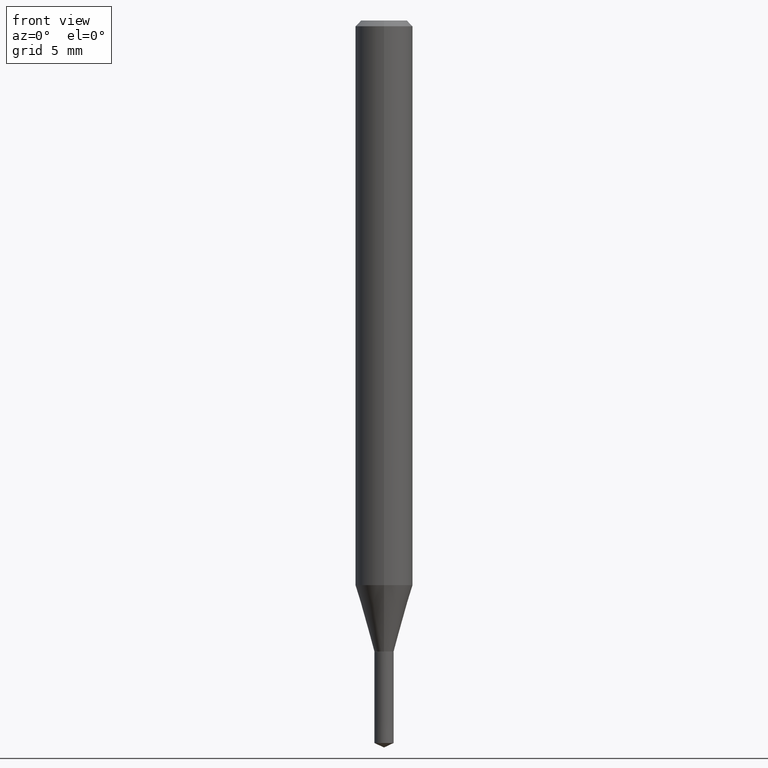
[diagram: clean part render]
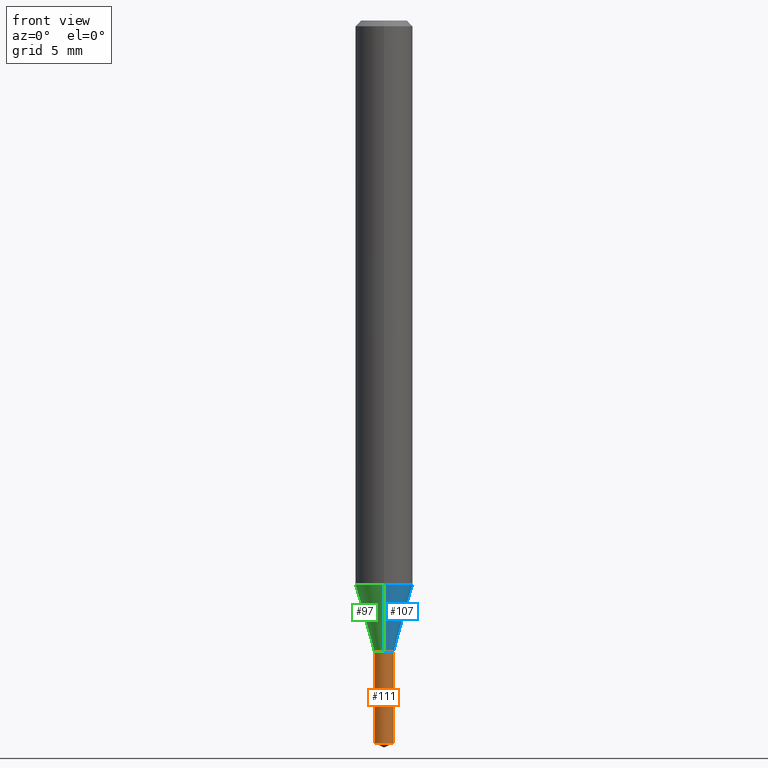
[diagram: same view with three faces highlighted in distinct colors, each labeled with its STEP entity id]
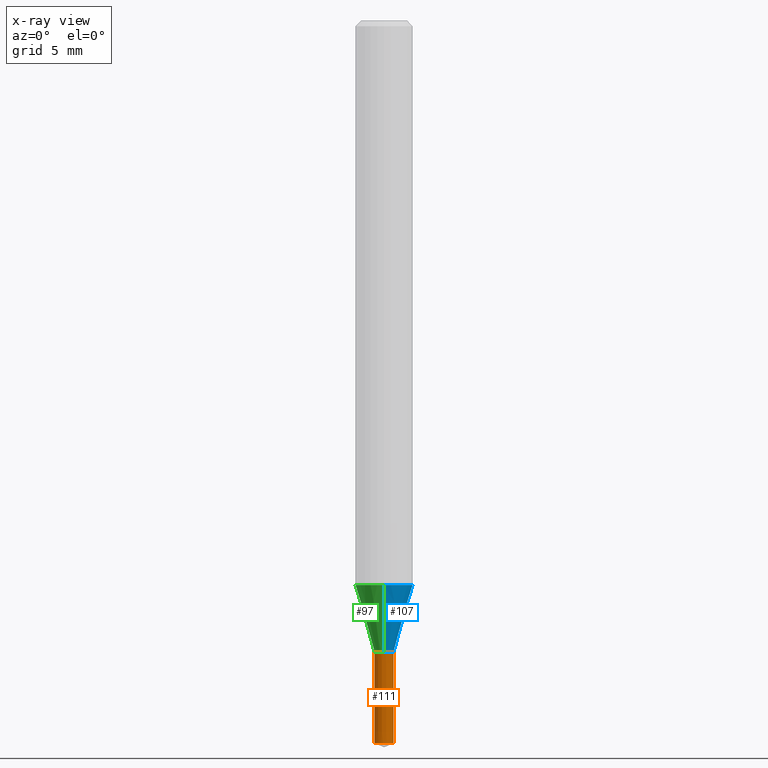
[diagram: x-ray of the same camera — body ghosted, the three highlighted faces saturated]
A machine part, front view with three faces highlighted in distinct colors.
The next image is the same camera in x-ray (body ghosted, the three faces saturated) — at least one of them is partly hidden behind the body in this view.
Their STEP definitions:

[orange] entity #111 — the highlighted conical surface has half-angle 0.012 deg.
#101=EDGE_CURVE('',#197,#163,#239,.T.);
#111=ADVANCED_FACE('',(#250),#251,.T.);
#117=EDGE_CURVE('',#197,#185,#259,.T.);
#131=EDGE_CURVE('',#175,#163,#276,.T.);
#159=EDGE_CURVE('',#185,#175,#304,.T.);
#163=VERTEX_POINT('',#308);
#175=VERTEX_POINT('',#321);
#185=VERTEX_POINT('',#332);
#197=VERTEX_POINT('',#345);
#239=CIRCLE('',#385,0.5);
#250=FACE_OUTER_BOUND('',#398,.T.);
#251=CONICAL_SURFACE('',#399,0.5005,0.000209782306721776);
#259=LINE('',#408,#409);
#276=LINE('',#431,#432);
#304=CIRCLE('',#468,0.501);
#308=CARTESIAN_POINT('',(-0.5,0.0,-37.76684617));
#321=CARTESIAN_POINT('',(-0.501,0.0,-33.0));
#332=CARTESIAN_POINT('',(0.501,6.13527783265011E-017,-33.0));
#345=CARTESIAN_POINT('',(0.5,6.12303176911189E-017,-37.76684617));
#385=AXIS2_PLACEMENT_3D('',#560,#561,#562);
#398=EDGE_LOOP('',(#573,#574,#575,#576));
#399=AXIS2_PLACEMENT_3D('',#577,#578,#579);
#408=CARTESIAN_POINT('',(0.5005,6.129154800881E-017,-35.383423085));
#409=VECTOR('',#593,1.0);
#431=CARTESIAN_POINT('',(-0.5005,-6.129154800881E-017,-35.383423085));
#432=VECTOR('',#625,1.0);
#468=AXIS2_PLACEMENT_3D('',#641,#642,#643);
#560=CARTESIAN_POINT('',(0.0,0.0,-37.76684617));
#561=DIRECTION('',(0.0,0.0,-1.0));
#562=DIRECTION('',(-1.0,0.0,0.0));
#573=ORIENTED_EDGE('',*,*,#131,.T.);
#574=ORIENTED_EDGE('',*,*,#101,.F.);
#575=ORIENTED_EDGE('',*,*,#117,.T.);
#576=ORIENTED_EDGE('',*,*,#159,.T.);
#577=CARTESIAN_POINT('',(0.0,0.0,-35.383423085));
#578=DIRECTION('',(-0.0,-0.0,1.0));
#579=DIRECTION('',(-1.0,0.0,0.0));
#593=DIRECTION('',(0.000209782305183071,2.56900743846694E-020,0.999999977995692));
#625=DIRECTION('',(0.000209782305183071,2.56900743846694E-020,-0.999999977995692));
#641=CARTESIAN_POINT('',(0.0,0.0,-33.0));
#642=DIRECTION('',(0.0,0.0,-1.0));
#643=DIRECTION('',(-1.0,0.0,0.0));

[blue] entity #107 — the highlighted conical surface has half-angle 16.006 deg.
#103=EDGE_CURVE('',#147,#105,#241,.T.);
#105=VERTEX_POINT('',#243);
#107=ADVANCED_FACE('',(#245),#246,.T.);
#109=VERTEX_POINT('',#248);
#119=EDGE_CURVE('',#149,#105,#261,.T.);
#127=EDGE_CURVE('',#149,#109,#271,.T.);
#147=VERTEX_POINT('',#292);
#149=VERTEX_POINT('',#294);
#151=EDGE_CURVE('',#109,#147,#296,.T.);
#241=LINE('',#388,#389);
#243=CARTESIAN_POINT('',(1.83690953073357E-016,-1.5,-29.513));
#245=FACE_OUTER_BOUND('',#393,.T.);
#246=CONICAL_SURFACE('',#394,1.0,0.279349998205856);
#248=CARTESIAN_POINT('',(0.0,0.5,-32.9991339745962));
#261=CIRCLE('',#412,1.5);
#271=LINE('',#424,#425);
#292=CARTESIAN_POINT('',(6.12303176911189E-017,-0.5,-32.9991339745962));
#294=CARTESIAN_POINT('',(0.0,1.5,-29.513));
#296=CIRCLE('',#458,0.5);
#388=CARTESIAN_POINT('',(1.22460635382238E-016,-1.0,-31.2560669872981));
#389=VECTOR('',#563,1.0);
#393=EDGE_LOOP('',(#565,#566,#567,#568));
#394=AXIS2_PLACEMENT_3D('',#569,#570,#571);
#412=AXIS2_PLACEMENT_3D('',#594,#595,#596);
#424=CARTESIAN_POINT('',(-1.22460635382238E-016,1.0,-31.2560669872981));
#425=VECTOR('',#616,1.0);
#458=AXIS2_PLACEMENT_3D('',#635,#636,#637);
#563=DIRECTION('',(3.37661815108076E-017,-0.275730902468478,0.961234866941435));
#565=ORIENTED_EDGE('',*,*,#127,.F.);
#566=ORIENTED_EDGE('',*,*,#119,.T.);
#567=ORIENTED_EDGE('',*,*,#103,.F.);
#568=ORIENTED_EDGE('',*,*,#151,.F.);
#569=CARTESIAN_POINT('',(0.0,0.0,-31.2560669872981));
#570=DIRECTION('',(-0.0,-0.0,1.0));
#571=DIRECTION('',(0.0,1.0,0.0));
#594=CARTESIAN_POINT('',(0.0,0.0,-29.513));
#595=DIRECTION('',(0.0,0.0,-1.0));
#596=DIRECTION('',(0.0,1.0,0.0));
#616=DIRECTION('',(3.37661815108076E-017,-0.275730902468478,-0.961234866941435));
#635=CARTESIAN_POINT('',(0.0,0.0,-32.9991339745962));
#636=DIRECTION('',(0.0,0.0,-1.0));
#637=DIRECTION('',(0.0,1.0,0.0));

[green] entity #97 — the highlighted conical surface has half-angle 16.006 deg.
#97=ADVANCED_FACE('',(#233),#234,.T.);
#103=EDGE_CURVE('',#147,#105,#241,.T.);
#105=VERTEX_POINT('',#243);
#109=VERTEX_POINT('',#248);
#127=EDGE_CURVE('',#149,#109,#271,.T.);
#137=EDGE_CURVE('',#147,#109,#282,.T.);
#147=VERTEX_POINT('',#292);
#149=VERTEX_POINT('',#294);
#189=EDGE_CURVE('',#105,#149,#336,.T.);
#233=FACE_OUTER_BOUND('',#378,.T.);
#234=CONICAL_SURFACE('',#379,1.0,0.279349998205856);
#241=LINE('',#388,#389);
#243=CARTESIAN_POINT('',(1.83690953073357E-016,-1.5,-29.513));
#248=CARTESIAN_POINT('',(0.0,0.5,-32.9991339745962));
#271=LINE('',#424,#425);
#282=CIRCLE('',#438,0.5);
#292=CARTESIAN_POINT('',(6.12303176911189E-017,-0.5,-32.9991339745962));
#294=CARTESIAN_POINT('',(0.0,1.5,-29.513));
#336=CIRCLE('',#509,1.5);
#378=EDGE_LOOP('',(#546,#547,#548,#549));
#379=AXIS2_PLACEMENT_3D('',#550,#551,#552);
#388=CARTESIAN_POINT('',(1.22460635382238E-016,-1.0,-31.2560669872981));
#389=VECTOR('',#563,1.0);
#424=CARTESIAN_POINT('',(-1.22460635382238E-016,1.0,-31.2560669872981));
#425=VECTOR('',#616,1.0);
#438=AXIS2_PLACEMENT_3D('',#627,#628,#629);
#509=AXIS2_PLACEMENT_3D('',#671,#672,#673);
#546=ORIENTED_EDGE('',*,*,#127,.T.);
#547=ORIENTED_EDGE('',*,*,#137,.F.);
#548=ORIENTED_EDGE('',*,*,#103,.T.);
#549=ORIENTED_EDGE('',*,*,#189,.T.);
#550=CARTESIAN_POINT('',(0.0,0.0,-31.2560669872981));
#551=DIRECTION('',(-0.0,-0.0,1.0));
#552=DIRECTION('',(0.0,1.0,0.0));
#563=DIRECTION('',(3.37661815108076E-017,-0.275730902468478,0.961234866941435));
#616=DIRECTION('',(3.37661815108076E-017,-0.275730902468478,-0.961234866941435));
#627=CARTESIAN_POINT('',(0.0,0.0,-32.9991339745962));
#628=DIRECTION('',(0.0,0.0,-1.0));
#629=DIRECTION('',(0.0,1.0,0.0));
#671=CARTESIAN_POINT('',(0.0,0.0,-29.513));
#672=DIRECTION('',(0.0,0.0,-1.0));
#673=DIRECTION('',(0.0,1.0,0.0));